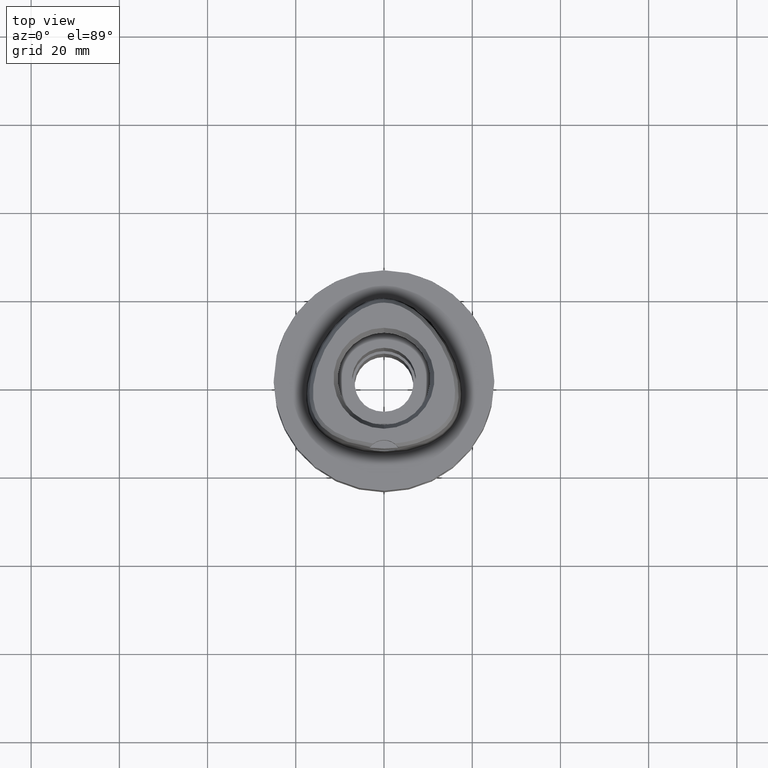
[diagram: clean part render]
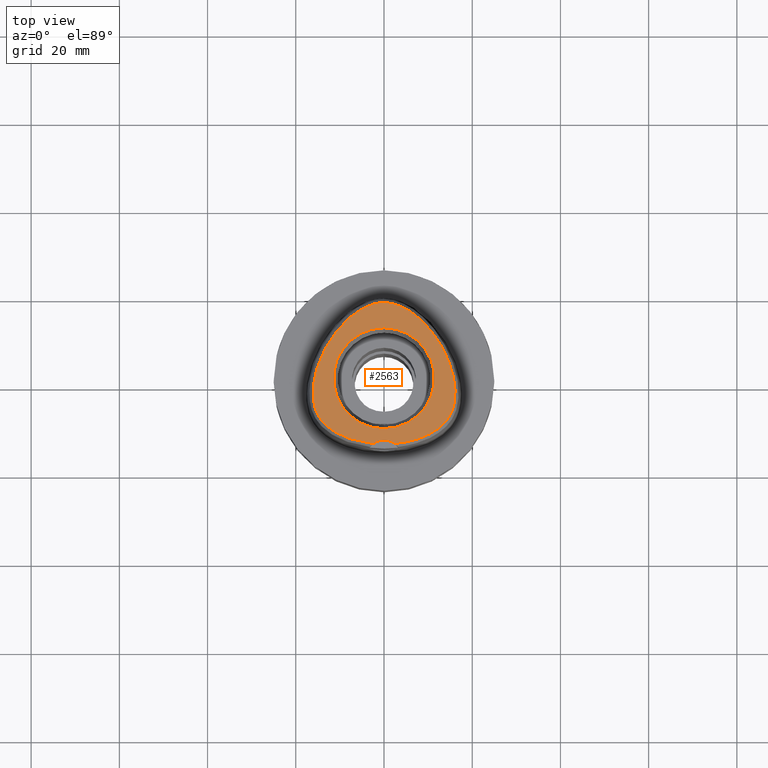
[diagram: same view with one face highlighted and labeled with its STEP entity id]
A machine part, top view. The second image highlights one B-rep face of the part: STEP entity #2563.
In plain terms, the highlighted planar face has unit normal (0, 0, 1).
Its self-contained STEP definition (entity closure, byte-faithful):
#22 = CARTESIAN_POINT ( 'NONE',  ( -2.406542353497000075, -14.80491723099000012, 30.00000000000000000 ) ) ;
#170 = CARTESIAN_POINT ( 'NONE',  ( -12.65209017756199650, -11.12734424253191534, 29.99999999999280575 ) ) ;
#177 = DIRECTION ( 'NONE',  ( 0.0000000000000000000, 0.0000000000000000000, 1.000000000000000000 ) ) ;
#181 = CARTESIAN_POINT ( 'NONE',  ( 10.60500548644139407, -12.49469941439781095, 29.99999999999902300 ) ) ;
#199 = CARTESIAN_POINT ( 'NONE',  ( -11.11900396222356235, 10.19116357425470376, 29.99999999999617728 ) ) ;
#228 = CARTESIAN_POINT ( 'NONE',  ( -10.27907733182561856, 11.24278573583105967, 29.99999999998611955 ) ) ;
#247 = CARTESIAN_POINT ( 'NONE',  ( 15.04259016984715913, -8.247723288182516654, 30.00000000000400746 ) ) ;
#253 = DIRECTION ( 'NONE',  ( 0.0000000000000000000, 0.0000000000000000000, 1.000000000000000000 ) ) ;
#309 = B_SPLINE_CURVE_WITH_KNOTS ( 'NONE', 3,
 ( #1132, #2253, #1371, #664, #2866, #686, #4377, #3671, #4326, #3282, #3692, #611, #3965, #1056, #2452, #3224, #2945, #2482, #3304, #2506, #2555, #4420, #4019, #4772, #4067, #334, #3997, #2112, #3621, #4589, #2348, #484, #3716, #893, #2401, #247, #3540, #4315, #4728, #940, #3953, #570, #2491, #3910, #181, #1660, #3162, #4659, #1280, #1713, #3212, #2806, #2420, #3982 ),
 .UNSPECIFIED., .F., .F.,
 ( 4, 1, 1, 1, 1, 1, 1, 1, 1, 1, 1, 1, 1, 1, 1, 1, 1, 1, 1, 1, 1, 1, 1, 1, 1, 1, 1, 1, 1, 1, 1, 1, 1, 1, 1, 1, 1, 1, 1, 1, 1, 1, 1, 1, 1, 1, 1, 1, 1, 1, 1, 4 ),
 ( 0.0000000000000000000, 0.01988587058640001182, 0.03977174117009996124, 0.05965761175399997285, 0.07954348233780006439, 0.09942935292160004490, 0.1193152235055000565, 0.1392010940893000370, 0.1590869646731999376, 0.1789728352568999981, 0.1988587058408000097, 0.2187445764247000213, 0.2386304470083999707, 0.2585163175922999823, 0.2784021881761000738, 0.2982880587598999433, 0.3181739293438000660, 0.3380597999276000465, 0.3579456705113999160, 0.3778315410952000075, 0.3977174116791000191, 0.4176032822630000307, 0.4374891528466999802, 0.4573750234305999918, 0.4772608940143999723, 0.4971467645981999528, 0.5170326351820999644, 0.5369185057659000559, 0.5568043763497000365, 0.5766902469335999371, 0.5965761175174000286, 0.6164619881012000091, 0.6363478586849999896, 0.6562337292689000012, 0.6761195998528000128, 0.6960054704364999623, 0.7158913410203999739, 0.7357772116042000654, 0.7556630821880000459, 0.7755489527718999465, 0.7954348233557000381, 0.8153206939395000186, 0.8352065645232999991, 0.8550924351072000107, 0.8749783056909999912, 0.8948641762747999717, 0.9147500468586799993, 0.9346359174424899718, 0.9545217880263200394, 0.9744076586101599879, 0.9942935291939859477, 1.000000000000000000 ),
 .UNSPECIFIED. ) ;
#334 = CARTESIAN_POINT ( 'NONE',  ( 15.90185233182275759, -0.6139199331565649009, 29.99999999999868194 ) ) ;
#466 = CARTESIAN_POINT ( 'NONE',  ( -16.08550869467331879, -4.376322360225836761, 29.99999999999597122 ) ) ;
#484 = CARTESIAN_POINT ( 'NONE',  ( 15.87349190487638495, -5.869792298897605676, 30.00000000000116174 ) ) ;
#488 = CARTESIAN_POINT ( 'NONE',  ( -16.11283982316504648, -2.629907404753217826, 29.99999999999127098 ) ) ;
#504 = EDGE_CURVE ( 'NONE', #4191, #3636, #309, .T. ) ;
#564 = CARTESIAN_POINT ( 'NONE',  ( -4.498660734199611433, 15.99814720005997337, 29.99999999999542766 ) ) ;
#570 = CARTESIAN_POINT ( 'NONE',  ( 12.65514534656730916, -11.12483370673971095, 30.00000000000817479 ) ) ;
#596 = CARTESIAN_POINT ( 'NONE',  ( -1.772880577022614812, 16.97196055715838270, 29.99999999999553069 ) ) ;
#611 = CARTESIAN_POINT ( 'NONE',  ( 6.863227115065437367, 14.51498137220247564, 30.00000000000018829 ) ) ;
#638 = EDGE_CURVE ( 'NONE', #1384, #2234, #2397, .T. ) ;
#664 = CARTESIAN_POINT ( 'NONE',  ( 1.161482229273570921, 17.07843133414933945, 30.00000000000869349 ) ) ;
#686 = CARTESIAN_POINT ( 'NONE',  ( 2.412811123804682101, 16.81558681049441617, 30.00000000001045919 ) ) ;
#797 = CARTESIAN_POINT ( 'NONE',  ( -6.047371482395887732, 15.09400374235710274, 29.99999999999099742 ) ) ;
#821 = CARTESIAN_POINT ( 'NONE',  ( -6.862723739080804464, 14.51536572209159281, 29.99999999999340972 ) ) ;
#831 = EDGE_LOOP ( 'NONE', ( #3708, #2048, #2431 ) ) ;
#879 = CARTESIAN_POINT ( 'NONE',  ( -11.36350786442362804, -12.05063008428850679, 29.99999999999223022 ) ) ;
#893 = CARTESIAN_POINT ( 'NONE',  ( 15.51702143705363213, -7.148634146068517659, 30.00000000000283507 ) ) ;
#940 = CARTESIAN_POINT ( 'NONE',  ( 13.66559393375217546, -10.18115111193898947, 30.00000000000609290 ) ) ;
#1056 = CARTESIAN_POINT ( 'NONE',  ( 8.557117433366284942, 13.07415149352838135, 30.00000000000518696 ) ) ;
#1062 = EDGE_CURVE ( 'NONE', #2234, #1384, #4121, .T. ) ;
#1089 = DIRECTION ( 'NONE',  ( 0.0000000000000000000, 1.000000000000000000, 0.0000000000000000000 ) ) ;
#1132 = CARTESIAN_POINT ( 'NONE',  ( -6.301949014349000839E-11, 17.15328888647999861, 30.00000000000000000 ) ) ;
#1163 = CARTESIAN_POINT ( 'NONE',  ( 0.0000000000000000000, 11.43782217350000074, 30.00000000000000000 ) ) ;
#1204 = CARTESIAN_POINT ( 'NONE',  ( -13.38439869301727825, 6.635703175840353296, 29.99999999999423039 ) ) ;
#1236 = CARTESIAN_POINT ( 'NONE',  ( -8.809985523416104414, -13.33678107331394713, 29.99999999999694822 ) ) ;
#1268 = CARTESIAN_POINT ( 'NONE',  ( 0.0000000000000000000, 1.570609519905999910E-14, 30.00000000000000000 ) ) ;
#1272 = CARTESIAN_POINT ( 'NONE',  ( -4.150496093831081090, -14.59917355180450826, 29.99999999999743849 ) ) ;
#1280 = CARTESIAN_POINT ( 'NONE',  ( 6.658132732488579286, -14.05774790738911051, 30.00000000000316902 ) ) ;
#1290 = EDGE_LOOP ( 'NONE', ( #2059, #3605 ) ) ;
#1322 = CARTESIAN_POINT ( 'NONE',  ( -15.29229544370164184, -7.721097396977927296, 29.99999999999320721 ) ) ;
#1349 = CARTESIAN_POINT ( 'NONE',  ( -15.04149970408048986, -8.249836848501487907, 29.99999999999654321 ) ) ;
#1371 = CARTESIAN_POINT ( 'NONE',  ( 0.5691917915716084853, 17.14006060248818031, 30.00000000001038813 ) ) ;
#1384 = VERTEX_POINT ( 'NONE', #1163 ) ;
#1417 = DIRECTION ( 'NONE',  ( 0.0000000000000000000, 0.0000000000000000000, 1.000000000000000000 ) ) ;
#1458 = AXIS2_PLACEMENT_3D ( 'NONE', #2820, #177, #4267 ) ;
#1648 = CARTESIAN_POINT ( 'NONE',  ( -12.04571048960004553, -11.59259605426983342, 29.99999999999594635 ) ) ;
#1660 = CARTESIAN_POINT ( 'NONE',  ( 9.755668685252752326, -12.92551394022653888, 30.00000000000211742 ) ) ;
#1679 = CARTESIAN_POINT ( 'NONE',  ( 0.0000000000000000000, -11.43782217350000074, 30.00000000000000000 ) ) ;
#1680 = CARTESIAN_POINT ( 'NONE',  ( -7.700642921101873206, 13.84415306341485241, 29.99999999999238653 ) ) ;
#1708 = CARTESIAN_POINT ( 'NONE',  ( -8.556928701965283324, 13.07433695898842707, 29.99999999998939515 ) ) ;
#1713 = CARTESIAN_POINT ( 'NONE',  ( 5.446614459517069129, -14.35518554872932917, 30.00000000000590816 ) ) ;
#1738 = FACE_BOUND ( 'NONE', #1290, .T. ) ;
#1762 = CARTESIAN_POINT ( 'NONE',  ( -6.301949014349000839E-11, 17.15328888647999861, 30.00000000000000000 ) ) ;
#1831 = CARTESIAN_POINT ( 'NONE',  ( 0.0000000000000000000, 1.570609519905999910E-14, 30.00000000000000000 ) ) ;
#1959 = CARTESIAN_POINT ( 'NONE',  ( -1.160151454488445699, 17.07862209883766980, 29.99999999999142020 ) ) ;
#1984 = CARTESIAN_POINT ( 'NONE',  ( -15.68979199461364615, 0.4896967076518147222, 29.99999999999572964 ) ) ;
#2001 = AXIS2_PLACEMENT_3D ( 'NONE', #1268, #1417, #2107 ) ;
#2048 = ORIENTED_EDGE ( 'NONE', *, *, #2926, .F. ) ;
#2059 = ORIENTED_EDGE ( 'NONE', *, *, #1062, .F. ) ;
#2070 = CARTESIAN_POINT ( 'NONE',  ( -2.411640998825903104, 16.81591728051250811, 29.99999999999582556 ) ) ;
#2098 = CARTESIAN_POINT ( 'NONE',  ( -15.71065119879038186, -6.536303815290032126, 29.99999999999036149 ) ) ;
#2107 = DIRECTION ( 'NONE',  ( 0.0000000000000000000, -1.000000000000000000, 0.0000000000000000000 ) ) ;
#2112 = CARTESIAN_POINT ( 'NONE',  ( 16.11273027396860869, -2.627494158581008321, 30.00000000000489919 ) ) ;
#2234 = VERTEX_POINT ( 'NONE', #1679 ) ;
#2253 = CARTESIAN_POINT ( 'NONE',  ( 0.1912597614439535132, 17.15328888648386751, 30.00000000000342126 ) ) ;
#2258 = EDGE_CURVE ( 'NONE', #3636, #4756, #2893, .T. ) ;
#2298 = CARTESIAN_POINT ( 'NONE',  ( -5.257871200568094316, 15.58649213537449540, 29.99999999999384670 ) ) ;
#2327 = CARTESIAN_POINT ( 'NONE',  ( -3.077178008231529205, 16.60571267458058031, 29.99999999999602451 ) ) ;
#2348 = CARTESIAN_POINT ( 'NONE',  ( 15.99982784345596976, -5.151471542954735305, 29.99999999999806732 ) ) ;
#2351 = CARTESIAN_POINT ( 'NONE',  ( -13.66338899149184805, -10.18351204678487143, 29.99999999999111111 ) ) ;
#2397 = CIRCLE ( 'NONE', #3349, 11.43782217350000074 ) ;
#2401 = CARTESIAN_POINT ( 'NONE',  ( 15.29323375805077134, -7.718923543002969900, 30.00000000000274980 ) ) ;
#2420 = CARTESIAN_POINT ( 'NONE',  ( 2.538962679605470729, -14.79292722369608271, 30.00000000000931877 ) ) ;
#2431 = ORIENTED_EDGE ( 'NONE', *, *, #2258, .F. ) ;
#2452 = CARTESIAN_POINT ( 'NONE',  ( 9.420872132873588711, 12.20574557692858164, 30.00000000000777689 ) ) ;
#2461 = CARTESIAN_POINT ( 'NONE',  ( -16.04083576397897914, -1.656498942829054632, 29.99999999999327471 ) ) ;
#2482 = CARTESIAN_POINT ( 'NONE',  ( 11.92667412982101460, 9.061218325782419925, 29.99999999999763389 ) ) ;
#2491 = CARTESIAN_POINT ( 'NONE',  ( 12.04928217775816357, -11.59002493207335505, 30.00000000000548539 ) ) ;
#2506 = CARTESIAN_POINT ( 'NONE',  ( 13.38374903490284673, 6.636915464739853832, 30.00000000000296652 ) ) ;
#2555 = CARTESIAN_POINT ( 'NONE',  ( 14.01089202938475253, 5.377385268370936444, 29.99999999999765876 ) ) ;
#2563 = ADVANCED_FACE ( 'NONE', ( #4764, #1738 ), #3637, .T. ) ;
#2711 = CARTESIAN_POINT ( 'NONE',  ( -16.12543283908719260, -3.535877041748649141, 29.99999999999990763 ) ) ;
#2773 = CARTESIAN_POINT ( 'NONE',  ( -5.437876102061383499, -14.35707869331324460, 29.99999999999513989 ) ) ;
#2796 = CARTESIAN_POINT ( 'NONE',  ( -6.650243356160883579, -14.05992414833251125, 29.99999999999740652 ) ) ;
#2806 = CARTESIAN_POINT ( 'NONE',  ( 3.130495111450381174, -14.73481892791719616, 30.00000000000748557 ) ) ;
#2820 = CARTESIAN_POINT ( 'NONE',  ( 0.0000000000000000000, -18.00000000000000000, 30.00000000000000000 ) ) ;
#2821 = CARTESIAN_POINT ( 'NONE',  ( -15.87300767660868672, -5.872112237379268684, 29.99999999999657874 ) ) ;
#2846 = CARTESIAN_POINT ( 'NONE',  ( -15.02099409651310680, 2.867135356160894766, 30.00000000000047962 ) ) ;
#2866 = CARTESIAN_POINT ( 'NONE',  ( 1.774127352510408873, 16.97169788999106288, 30.00000000000130029 ) ) ;
#2893 = CIRCLE ( 'NONE', #1458, 4.000000000000000888 ) ;
#2920 = CARTESIAN_POINT ( 'NONE',  ( 2.406543924163999648, -14.80491841401999942, 30.00000000000000000 ) ) ;
#2926 = EDGE_CURVE ( 'NONE', #4756, #4191, #3476, .T. ) ;
#2945 = CARTESIAN_POINT ( 'NONE',  ( 11.11868440495759280, 10.19157821280366960, 30.00000000000270717 ) ) ;
#3132 = CARTESIAN_POINT ( 'NONE',  ( -9.750168658359520180, -12.92810664734178872, 29.99999999999737454 ) ) ;
#3162 = CARTESIAN_POINT ( 'NONE',  ( 8.816245487876695819, -13.33426548781619125, 30.00000000000040501 ) ) ;
#3187 = CARTESIAN_POINT ( 'NONE',  ( -6.301949014349000839E-11, 17.15328888647999861, 30.00000000000000000 ) ) ;
#3212 = CARTESIAN_POINT ( 'NONE',  ( 4.159771979224633931, -14.59766906203867087, 30.00000000000334666 ) ) ;
#3224 = CARTESIAN_POINT ( 'NONE',  ( 10.27891984617941468, 11.24296481357276889, 29.99999999999936406 ) ) ;
#3231 = CARTESIAN_POINT ( 'NONE',  ( -14.55898035934838397, 4.112421202111562479, 29.99999999999684519 ) ) ;
#3270 = CARTESIAN_POINT ( 'NONE',  ( 0.0000000000000000000, 0.0000000000000000000, 30.00000000000000000 ) ) ;
#3282 = CARTESIAN_POINT ( 'NONE',  ( 5.258649622038841898, 15.58603480843212097, 29.99999999999943512 ) ) ;
#3304 = CARTESIAN_POINT ( 'NONE',  ( 12.68590586676875809, 7.870511070825111588, 30.00000000000883915 ) ) ;
#3349 = AXIS2_PLACEMENT_3D ( 'NONE', #1831, #4783, #1089 ) ;
#3469 = CARTESIAN_POINT ( 'NONE',  ( -12.68647747556870087, 7.869569494476171378, 29.99999999999418065 ) ) ;
#3476 = B_SPLINE_CURVE_WITH_KNOTS ( 'NONE', 3,
 ( #4625, #3897, #3530, #1272, #2773, #2796, #3504, #1236, #3132, #4261, #879, #1648, #170, #4723, #2351, #3861, #4702, #4203, #1349, #1322, #3841, #2098, #2821, #3579, #466, #2711, #488, #2461, #3494, #1984, #3949, #2846, #3231, #4311, #1204, #3469, #4179, #199, #228, #3974, #1708, #1680, #821, #797, #2298, #564, #4567, #2327, #2070, #596, #1959, #4678, #3817, #3187 ),
 .UNSPECIFIED., .F., .F.,
 ( 4, 1, 1, 1, 1, 1, 1, 1, 1, 1, 1, 1, 1, 1, 1, 1, 1, 1, 1, 1, 1, 1, 1, 1, 1, 1, 1, 1, 1, 1, 1, 1, 1, 1, 1, 1, 1, 1, 1, 1, 1, 1, 1, 1, 1, 1, 1, 1, 1, 1, 1, 4 ),
 ( 0.0000000000000000000, 0.005566907331700066131, 0.02545556918509994659, 0.04534423103860008020, 0.06523289289190004059, 0.08512155474529992105, 0.1050102165987000236, 0.1248988784521999351, 0.1447875403055000065, 0.1646762021588999980, 0.1845648640122999895, 0.2044535258655999499, 0.2243421877191000835, 0.2442308495724999640, 0.2641195114257999244, 0.2840081732792000269, 0.3038968351325999073, 0.3237854969860000098, 0.3436741588394000013, 0.3635628206927999928, 0.3834514825461999843, 0.4033401443995000557, 0.4232288062529999673, 0.4431174681064000698, 0.4630061299597000302, 0.4828947918130999106, 0.5027834536666000442, 0.5226721155199000046, 0.5425607773732999961, 0.5624494392267000986, 0.5823381010799999480, 0.6022267629334999706, 0.6221154247869000731, 0.6420040866403000646, 0.6618927484936000250, 0.6817814103470000164, 0.7016700722005000390, 0.7215587340537999994, 0.7414473959071999909, 0.7613360577605999824, 0.7812247196139999739, 0.8011133814673999654, 0.8210020433207999568, 0.8408907051741000283, 0.8607793670275000197, 0.8806680288810000423, 0.9005566907343299787, 0.9204453525877199782, 0.9403340144411099777, 0.9602226762944999772, 0.9801113381478899766, 1.000000000000000000 ),
 .UNSPECIFIED. ) ;
#3494 = CARTESIAN_POINT ( 'NONE',  ( -15.90223487644760603, -0.6162487013685848947, 29.99999999999115730 ) ) ;
#3504 = CARTESIAN_POINT ( 'NONE',  ( -7.776737509123733183, -13.71663015822424292, 29.99999999999736389 ) ) ;
#3530 = CARTESIAN_POINT ( 'NONE',  ( -3.123276563984505927, -14.73562494724784599, 29.99999999999284839 ) ) ;
#3540 = CARTESIAN_POINT ( 'NONE',  ( 14.76450668990753101, -8.742560395149356012, 30.00000000000263611 ) ) ;
#3579 = CARTESIAN_POINT ( 'NONE',  ( -15.99949242929110937, -5.153835065649032821, 29.99999999999451106 ) ) ;
#3605 = ORIENTED_EDGE ( 'NONE', *, *, #638, .F. ) ;
#3611 = DIRECTION ( 'NONE',  ( 1.000000000000000000, 0.0000000000000000000, 0.0000000000000000000 ) ) ;
#3621 = CARTESIAN_POINT ( 'NONE',  ( 16.12546998862610437, -3.533461825553677382, 30.00000000000640910 ) ) ;
#3636 = VERTEX_POINT ( 'NONE', #2920 ) ;
#3637 = PLANE ( 'NONE',  #4532 ) ;
#3671 = CARTESIAN_POINT ( 'NONE',  ( 3.772905803807131697, 16.33508552419385040, 30.00000000000762412 ) ) ;
#3692 = CARTESIAN_POINT ( 'NONE',  ( 6.048015628560013290, 15.09357031579595265, 30.00000000000416378 ) ) ;
#3708 = ORIENTED_EDGE ( 'NONE', *, *, #504, .F. ) ;
#3716 = CARTESIAN_POINT ( 'NONE',  ( 15.71128456931254469, -6.534031654962950242, 30.00000000000341061 ) ) ;
#3817 = CARTESIAN_POINT ( 'NONE',  ( -0.1909045559980284412, 17.15328888648263472, 29.99999999999463540 ) ) ;
#3841 = CARTESIAN_POINT ( 'NONE',  ( -15.51623783591008809, -7.150856098907037328, 29.99999999999221956 ) ) ;
#3861 = CARTESIAN_POINT ( 'NONE',  ( -14.08052509618658021, -9.706873108418720975, 29.99999999998959410 ) ) ;
#3897 = CARTESIAN_POINT ( 'NONE',  ( -2.535517866335788462, -14.79323888261450648, 29.99999999999664624 ) ) ;
#3910 = CARTESIAN_POINT ( 'NONE',  ( 11.36765809995478804, -12.04801986073289299, 30.00000000000590816 ) ) ;
#3949 = CARTESIAN_POINT ( 'NONE',  ( -15.39727819201559100, 1.655076005306451714, 29.99999999999304734 ) ) ;
#3953 = CARTESIAN_POINT ( 'NONE',  ( 13.19176257967348675, -10.65479018522823296, 30.00000000000809663 ) ) ;
#3965 = CARTESIAN_POINT ( 'NONE',  ( 7.700998872106017856, 13.84384558891125749, 30.00000000000732925 ) ) ;
#3974 = CARTESIAN_POINT ( 'NONE',  ( -9.420854217685338483, 12.20577134110272333, 29.99999999999177547 ) ) ;
#3982 = CARTESIAN_POINT ( 'NONE',  ( 2.406543924163999648, -14.80491841401999942, 30.00000000000000000 ) ) ;
#3997 = CARTESIAN_POINT ( 'NONE',  ( 16.04058509949096489, -1.654113685488090901, 30.00000000000899192 ) ) ;
#4019 = CARTESIAN_POINT ( 'NONE',  ( 15.02033012161597192, 2.869071121501500343, 30.00000000000691003 ) ) ;
#4067 = CARTESIAN_POINT ( 'NONE',  ( 15.68929135223692484, 0.4919393172820917259, 30.00000000000268585 ) ) ;
#4121 = CIRCLE ( 'NONE', #2001, 11.43782217350000074 ) ;
#4179 = CARTESIAN_POINT ( 'NONE',  ( -11.92713521269503119, 9.060544494663686166, 29.99999999999513989 ) ) ;
#4191 = VERTEX_POINT ( 'NONE', #1762 ) ;
#4203 = CARTESIAN_POINT ( 'NONE',  ( -14.76322153899437595, -8.744676018998966072, 29.99999999999243983 ) ) ;
#4261 = CARTESIAN_POINT ( 'NONE',  ( -10.60021164903124813, -12.49731984708592769, 29.99999999998785682 ) ) ;
#4267 = DIRECTION ( 'NONE',  ( 0.6016359810410799591, 0.7987703964949736113, 0.0000000000000000000 ) ) ;
#4311 = CARTESIAN_POINT ( 'NONE',  ( -14.01158736113114500, 5.375902008631919138, 29.99999999999230837 ) ) ;
#4315 = CARTESIAN_POINT ( 'NONE',  ( 14.44767169633068526, -9.224476417584991594, 30.00000000000521894 ) ) ;
#4326 = CARTESIAN_POINT ( 'NONE',  ( 4.499552315896172772, 15.99769543814776718, 30.00000000000395417 ) ) ;
#4377 = CARTESIAN_POINT ( 'NONE',  ( 3.078265684543389114, 16.60532678263115258, 30.00000000000291678 ) ) ;
#4420 = CARTESIAN_POINT ( 'NONE',  ( 14.55828366953449304, 4.114142377745050538, 30.00000000000490274 ) ) ;
#4532 = AXIS2_PLACEMENT_3D ( 'NONE', #3270, #253, #3611 ) ;
#4567 = CARTESIAN_POINT ( 'NONE',  ( -3.771910472265467273, 16.33551310926250011, 29.99999999998999911 ) ) ;
#4589 = CARTESIAN_POINT ( 'NONE',  ( 16.08569500454947843, -4.373922630229548858, 30.00000000000370193 ) ) ;
#4625 = CARTESIAN_POINT ( 'NONE',  ( -2.406542353497000075, -14.80491723099000012, 30.00000000000000000 ) ) ;
#4659 = CARTESIAN_POINT ( 'NONE',  ( 7.783816186093317491, -13.71424622167330121, 30.00000000000685318 ) ) ;
#4678 = CARTESIAN_POINT ( 'NONE',  ( -0.5679008307150273938, 17.14013367087543571, 29.99999999999206679 ) ) ;
#4702 = CARTESIAN_POINT ( 'NONE',  ( -14.44611813752698026, -9.226676124713454996, 29.99999999998977884 ) ) ;
#4723 = CARTESIAN_POINT ( 'NONE',  ( -13.18915979441725739, -10.65722997876465250, 29.99999999999585754 ) ) ;
#4728 = CARTESIAN_POINT ( 'NONE',  ( 14.08238499152197853, -9.704590128437500240, 30.00000000000203926 ) ) ;
#4756 = VERTEX_POINT ( 'NONE', #22 ) ;
#4764 = FACE_OUTER_BOUND ( 'NONE', #831, .T. ) ;
#4772 = CARTESIAN_POINT ( 'NONE',  ( 15.39668103802111787, 1.657188505494148201, 30.00000000000486011 ) ) ;
#4783 = DIRECTION ( 'NONE',  ( 0.0000000000000000000, 0.0000000000000000000, 1.000000000000000000 ) ) ;